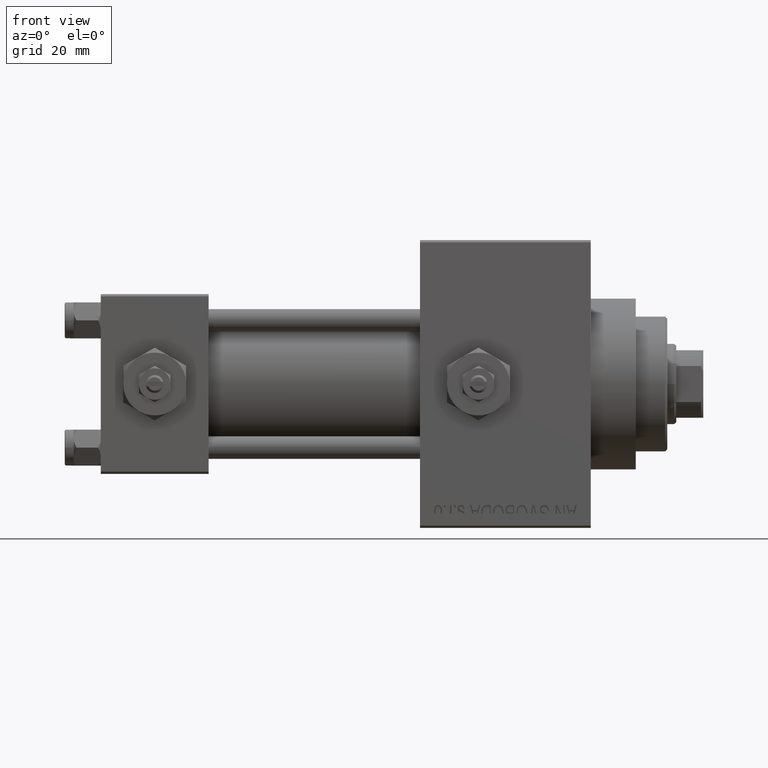
[diagram: clean part render]
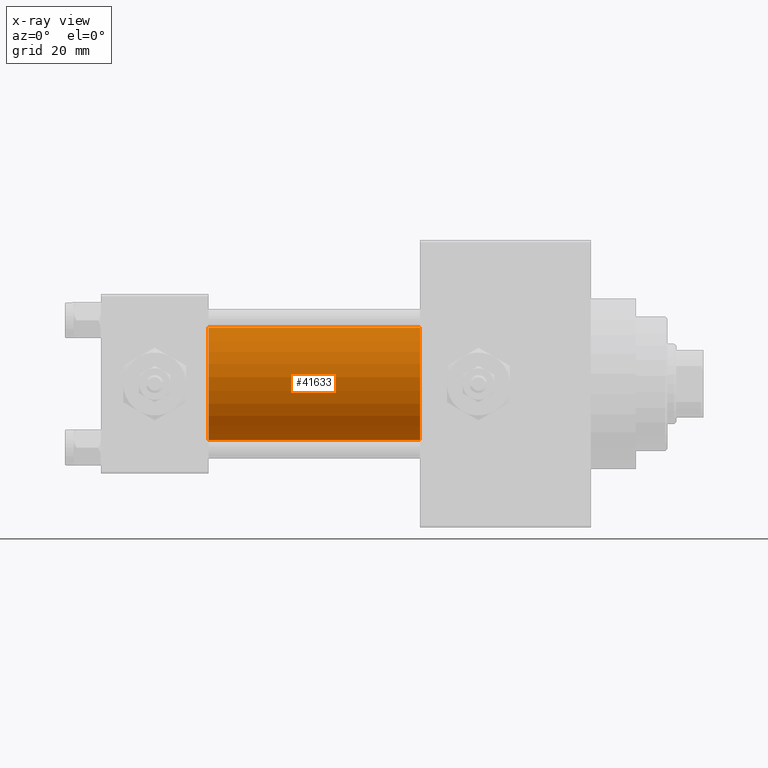
[diagram: x-ray — body ghosted, one internal face saturated and labeled with its STEP entity id]
A machine part, front view, then the same camera in x-ray: the body is ghosted and one INTERNAL B-rep face — a face not visible from any outside direction — is saturated and labeled: STEP entity #41633.
In plain terms, the highlighted cylindrical surface (partial cylindrical patch) has radius 12.5 mm, axis along (-1, -0, -0).
Its self-contained STEP definition (entity closure, byte-faithful):
#1682 = CARTESIAN_POINT ( 'NONE',  ( 24.00000000000000000, -1.071276715031019515E-15, -12.49999999999999645 ) ) ;
#3495 = DIRECTION ( 'NONE',  ( -1.000000000000000000, -0.000000000000000000, -0.000000000000000000 ) ) ;
#6472 = ORIENTED_EDGE ( 'NONE', *, *, #10703, .T. ) ;
#7539 = EDGE_CURVE ( 'NONE', #39357, #23116, #24753, .T. ) ;
#8846 = FACE_OUTER_BOUND ( 'NONE', #37631, .T. ) ;
#10703 = EDGE_CURVE ( 'NONE', #35991, #23116, #39607, .T. ) ;
#10929 = LINE ( 'NONE', #48607, #15584 ) ;
#12429 = ORIENTED_EDGE ( 'NONE', *, *, #41966, .F. ) ;
#15584 = VECTOR ( 'NONE', #3495, 1000.000000000000000 ) ;
#17462 = DIRECTION ( 'NONE',  ( 0.000000000000000000, 0.000000000000000000, -1.000000000000000000 ) ) ;
#20747 = CARTESIAN_POINT ( 'NONE',  ( 71.00000000000001421, -2.602085213965210642E-15, 0.000000000000000000 ) ) ;
#21240 = CARTESIAN_POINT ( 'NONE',  ( 71.00000000000001421, -2.602085213965210642E-15, 12.49999999999999645 ) ) ;
#22610 = EDGE_CURVE ( 'NONE', #33242, #35991, #45305, .T. ) ;
#22736 = AXIS2_PLACEMENT_3D ( 'NONE', #20747, #23964, #39321 ) ;
#23116 = VERTEX_POINT ( 'NONE', #1682 ) ;
#23964 = DIRECTION ( 'NONE',  ( -1.000000000000000000, -0.000000000000000000, -0.000000000000000000 ) ) ;
#24047 = VECTOR ( 'NONE', #35651, 1000.000000000000000 ) ;
#24753 = CIRCLE ( 'NONE', #46896, 12.49999999999999645 ) ;
#25467 = CARTESIAN_POINT ( 'NONE',  ( 71.00000000000001421, -1.071276715031019515E-15, -12.49999999999999645 ) ) ;
#25486 = AXIS2_PLACEMENT_3D ( 'NONE', #35561, #28624, #17462 ) ;
#26893 = CARTESIAN_POINT ( 'NONE',  ( 24.00000000000000000, -2.602085213965210642E-15, 12.49999999999999645 ) ) ;
#28624 = DIRECTION ( 'NONE',  ( 1.000000000000000000, 0.000000000000000000, 0.000000000000000000 ) ) ;
#29093 = CYLINDRICAL_SURFACE ( 'NONE', #22736, 12.49999999999999645 ) ;
#30556 = ORIENTED_EDGE ( 'NONE', *, *, #7539, .F. ) ;
#32790 = DIRECTION ( 'NONE',  ( 0.000000000000000000, 0.000000000000000000, -1.000000000000000000 ) ) ;
#33242 = VERTEX_POINT ( 'NONE', #21240 ) ;
#33878 = CARTESIAN_POINT ( 'NONE',  ( 71.00000000000001421, -1.071276715031019515E-15, -12.49999999999999645 ) ) ;
#35561 = CARTESIAN_POINT ( 'NONE',  ( 71.00000000000001421, -2.602085213965210642E-15, 0.000000000000000000 ) ) ;
#35651 = DIRECTION ( 'NONE',  ( -1.000000000000000000, -0.000000000000000000, -0.000000000000000000 ) ) ;
#35991 = VERTEX_POINT ( 'NONE', #33878 ) ;
#36745 = DIRECTION ( 'NONE',  ( 1.000000000000000000, 0.000000000000000000, 0.000000000000000000 ) ) ;
#37631 = EDGE_LOOP ( 'NONE', ( #46601, #6472, #30556, #12429 ) ) ;
#39321 = DIRECTION ( 'NONE',  ( 0.000000000000000000, 0.000000000000000000, 1.000000000000000000 ) ) ;
#39357 = VERTEX_POINT ( 'NONE', #26893 ) ;
#39607 = LINE ( 'NONE', #25467, #24047 ) ;
#41633 = ADVANCED_FACE ( 'NONE', ( #8846 ), #29093, .F. ) ;
#41966 = EDGE_CURVE ( 'NONE', #33242, #39357, #10929, .T. ) ;
#45305 = CIRCLE ( 'NONE', #25486, 12.49999999999999645 ) ;
#46601 = ORIENTED_EDGE ( 'NONE', *, *, #22610, .T. ) ;
#46896 = AXIS2_PLACEMENT_3D ( 'NONE', #48647, #36745, #32790 ) ;
#48607 = CARTESIAN_POINT ( 'NONE',  ( 71.00000000000001421, -2.602085213965210642E-15, 12.49999999999999645 ) ) ;
#48647 = CARTESIAN_POINT ( 'NONE',  ( 24.00000000000000000, -2.602085213965210642E-15, 0.000000000000000000 ) ) ;